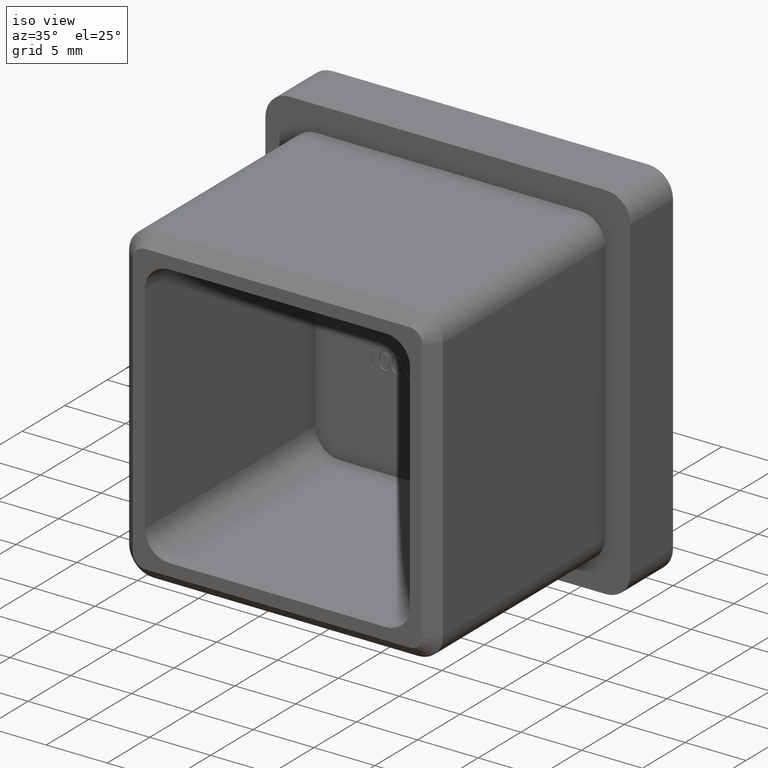
[diagram: clean part render]
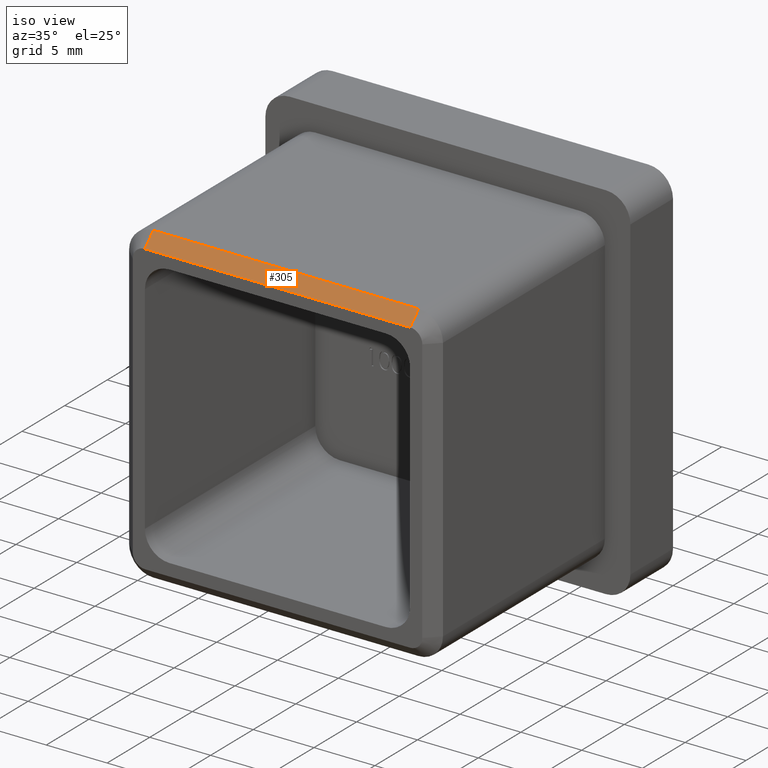
[diagram: same view with one face highlighted and labeled with its STEP entity id]
A machine part, iso view. The second image highlights one B-rep face of the part: STEP entity #305.
In plain terms, the highlighted planar face has unit normal (0, -0.7071, 0.7071).
Its self-contained STEP definition (entity closure, byte-faithful):
#305 = ADVANCED_FACE ( 'NONE', ( #3634 ), #16114, .T. ) ;
#883 = VERTEX_POINT ( 'NONE', #2435 ) ;
#1245 = DIRECTION ( 'NONE',  ( 1.000000000000000000, 0.0000000000000000000, 0.0000000000000000000 ) ) ;
#1430 = DIRECTION ( 'NONE',  ( 0.0000000000000000000, -0.7071067811865474600, -0.7071067811865474600 ) ) ;
#2434 = EDGE_LOOP ( 'NONE', ( #5768, #12595, #17106, #13360 ) ) ;
#2435 = CARTESIAN_POINT ( 'NONE',  ( -10.90000000000000600, -20.00000000000000000, 11.90000000000000400 ) ) ;
#2489 = EDGE_CURVE ( 'NONE', #10411, #883, #8413, .T. ) ;
#2773 = CARTESIAN_POINT ( 'NONE',  ( 10.90000000000000400, -19.00000000000000000, 12.90000000000000600 ) ) ;
#3361 = EDGE_CURVE ( 'NONE', #14442, #883, #11966, .T. ) ;
#3634 = FACE_OUTER_BOUND ( 'NONE', #2434, .T. ) ;
#3732 = DIRECTION ( 'NONE',  ( 0.0000000000000000000, -0.7071067811865474600, -0.7071067811865474600 ) ) ;
#5768 = ORIENTED_EDGE ( 'NONE', *, *, #3361, .T. ) ;
#5868 = VECTOR ( 'NONE', #16195, 1000.000000000000000 ) ;
#6384 = EDGE_CURVE ( 'NONE', #17185, #10411, #9469, .T. ) ;
#8413 = LINE ( 'NONE', #13414, #5868 ) ;
#8867 = VECTOR ( 'NONE', #3732, 1000.000000000000100 ) ;
#8988 = CARTESIAN_POINT ( 'NONE',  ( 10.90000000000000400, -19.00000000000000000, 12.90000000000000600 ) ) ;
#9384 = CARTESIAN_POINT ( 'NONE',  ( 10.90000000000000400, -19.00000000000000000, 12.90000000000000600 ) ) ;
#9469 = LINE ( 'NONE', #8988, #8867 ) ;
#9487 = DIRECTION ( 'NONE',  ( 1.000000000000000000, 0.0000000000000000000, 0.0000000000000000000 ) ) ;
#10018 = EDGE_CURVE ( 'NONE', #14442, #17185, #13517, .T. ) ;
#10368 = CARTESIAN_POINT ( 'NONE',  ( 10.90000000000000400, -20.00000000000000000, 11.90000000000000400 ) ) ;
#10411 = VERTEX_POINT ( 'NONE', #10368 ) ;
#11642 = CARTESIAN_POINT ( 'NONE',  ( -10.90000000000000600, -19.00000000000000000, 12.90000000000000600 ) ) ;
#11966 = LINE ( 'NONE', #13697, #15983 ) ;
#12073 = DIRECTION ( 'NONE',  ( 0.0000000000000000000, -0.7071067811865475700, 0.7071067811865475700 ) ) ;
#12205 = AXIS2_PLACEMENT_3D ( 'NONE', #13388, #12073, #9487 ) ;
#12595 = ORIENTED_EDGE ( 'NONE', *, *, #2489, .F. ) ;
#12888 = VECTOR ( 'NONE', #1245, 1000.000000000000000 ) ;
#13360 = ORIENTED_EDGE ( 'NONE', *, *, #10018, .F. ) ;
#13388 = CARTESIAN_POINT ( 'NONE',  ( 0.0000000000000000000, -20.00000000000000000, 11.90000000000000400 ) ) ;
#13414 = CARTESIAN_POINT ( 'NONE',  ( -10.90000000000000600, -20.00000000000000000, 11.90000000000000400 ) ) ;
#13517 = LINE ( 'NONE', #9384, #12888 ) ;
#13697 = CARTESIAN_POINT ( 'NONE',  ( -10.90000000000000600, -19.00000000000000000, 12.90000000000000600 ) ) ;
#14442 = VERTEX_POINT ( 'NONE', #11642 ) ;
#15983 = VECTOR ( 'NONE', #1430, 1000.000000000000100 ) ;
#16114 = PLANE ( 'NONE',  #12205 ) ;
#16195 = DIRECTION ( 'NONE',  ( -1.000000000000000000, 0.0000000000000000000, 0.0000000000000000000 ) ) ;
#17106 = ORIENTED_EDGE ( 'NONE', *, *, #6384, .F. ) ;
#17185 = VERTEX_POINT ( 'NONE', #2773 ) ;